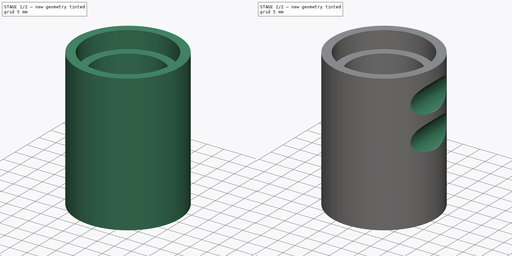
[diagram: build sequence overview — one tinted view per stage of 2, left to right]
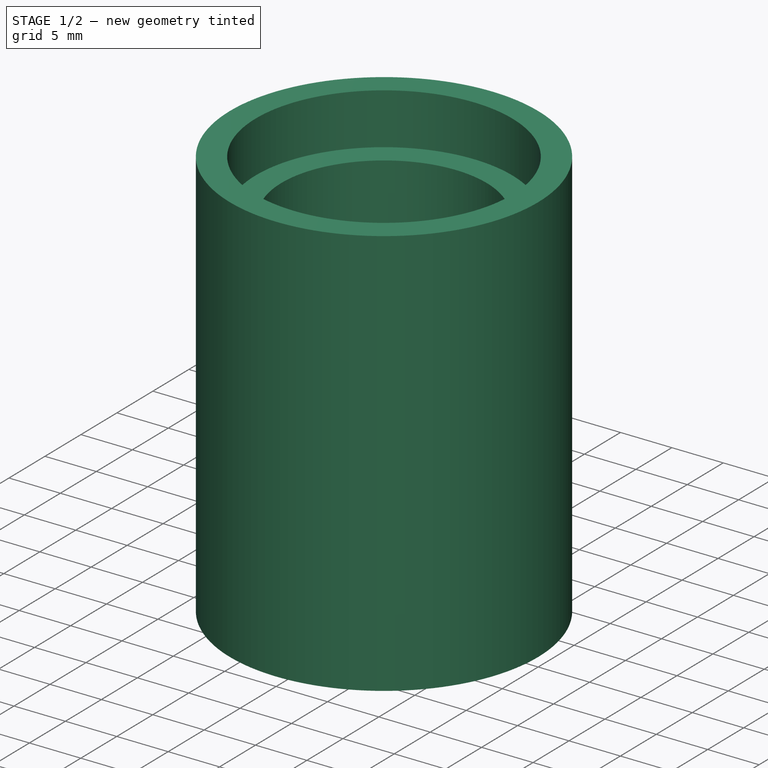
[diagram: stage 1 of 2 — iso view after this stage's code; geometry added in this stage tinted green]
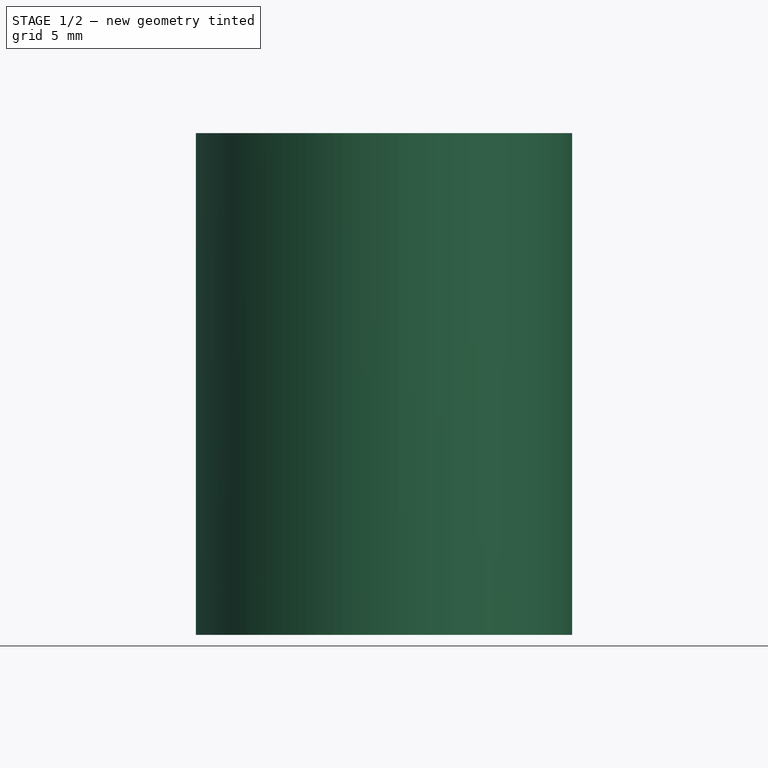
[diagram: stage 1 of 2 — front view after this stage's code; geometry added in this stage tinted green]
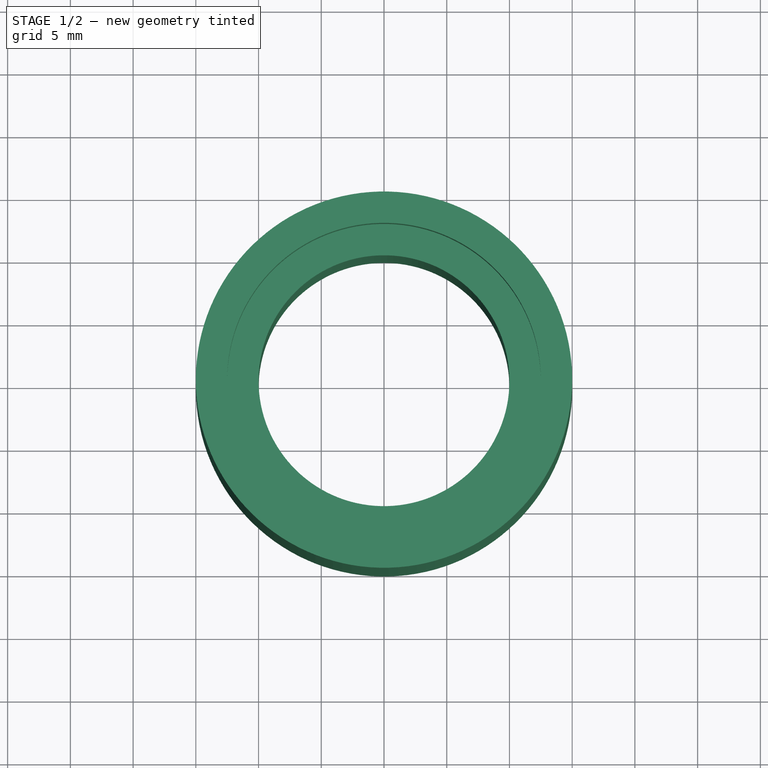
[diagram: stage 1 of 2 — top view after this stage's code; geometry added in this stage tinted green]
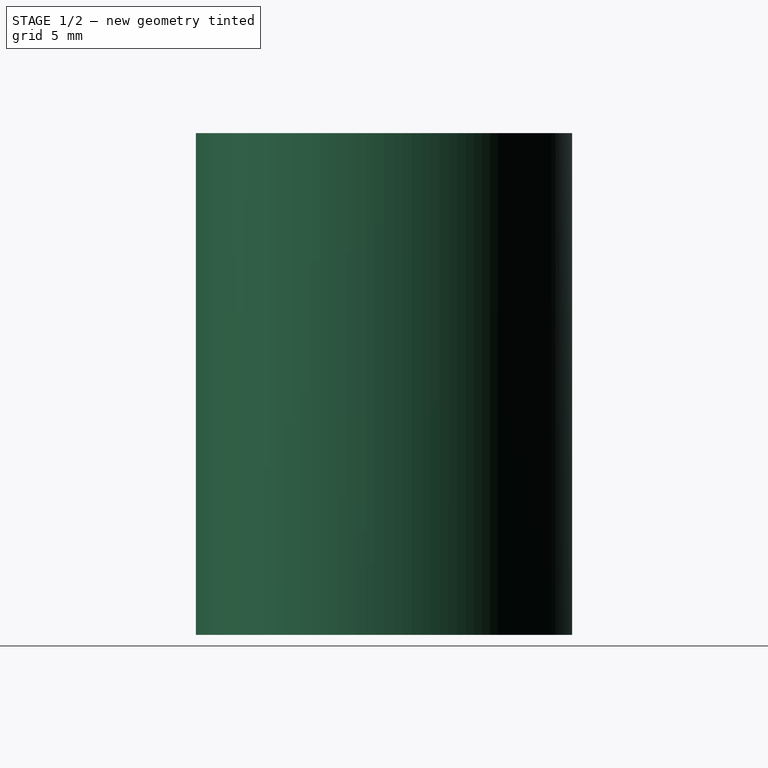
[diagram: stage 1 of 2 — right view after this stage's code; geometry added in this stage tinted green]
FCSTD DOCUMENT  (FreeCAD 0.18R16117 (Git))
Label: TelescopeTube
License: All rights reserved
LicenseURL: http://en.wikipedia.org/wiki/All_rights_reserved
objects: Sketcher::SketchObject×5, PartDesign::Pocket×3, PartDesign::Plane×2, PartDesign::Pad×1, PartDesign::Body×1
note: 16 computed .brp shape members not serialized (recipe doc carries the construction recipe); baked Part::Feature solids carry a one-line shape summary decoded from their .brp

FEATURE [Sketcher::SketchObject] Sketch  label="Master"
  MapMode = 5
  Support = -> [XY_Plane]
  sketch-geometry (5):
    g0: Circle CenterX=0 CenterY=0 CenterZ=0 NormalX=0 NormalY=0 NormalZ=1 AngleXU=0 Radius=15
    g1: Circle CenterX=0 CenterY=0 CenterZ=0 NormalX=0 NormalY=0 NormalZ=1 AngleXU=0 Radius=10
    g2: LineSegment StartX=31.7819 StartY=19.5998 StartZ=0 EndX=31.7819 EndY=-20.4002 EndZ=0
    g3: Circle CenterX=0 CenterY=0 CenterZ=0 NormalX=0 NormalY=0 NormalZ=1 AngleXU=0 Radius=12.5
    g4: Circle CenterX=0 CenterY=0 CenterZ=0 NormalX=0 NormalY=0 NormalZ=1 AngleXU=0 Radius=11.8
  constraints (10):
    c: Coincident(g0,g-1)
    c: Coincident(g1,g0)
    c: Radius(g0) = 15
    c: Radius(g1) = 10
    c: Vertical(g2)
    c: DistanceY(g2,g2) = 40  'TubeLength'
    c: Coincident(g3,g0)
    c: Radius(g3) = 12.5
    c: Coincident(g4,g0)
    c: Radius(g4) = 11.8
FEATURE [Sketcher::SketchObject] Sketch001
  MapMode = 5
  Support = -> [XY_Plane]
  expr: Constraints[3] = Sketch.Constraints[3]
  expr: Constraints[2] = Sketch.Constraints[2]
  sketch-geometry (2):
    g0: Circle CenterX=0 CenterY=0 CenterZ=0 NormalX=0 NormalY=0 NormalZ=1 AngleXU=0 Radius=15
    g1: Circle CenterX=0 CenterY=0 CenterZ=0 NormalX=0 NormalY=0 NormalZ=1 AngleXU=0 Radius=10
  constraints (4):
    c: Coincident(g0,g-1)
    c: Coincident(g1,g0)
    c: Radius(g0) = 15
    c: Radius(g1) = 10
FEATURE [PartDesign::Pad] Pad
  Length = 40
  Length2 = 100
  Midplane = true
  Profile = -> Sketch001
  Type = 0
  expr: Length = Master.Constraints.TubeLength
FEATURE [PartDesign::Plane] DatumPlane  label="DatumPlaneTop"
  AttachmentOffset = pos=(0,0,20) rot=(0,0,1;0rad)
  Length = 35.9835
  MapMode = 5
  Placement = pos=(0,0,20) rot=(0,0,1;0rad)
  ResizeMode = 0
  Support = -> [XY_Plane]
  Width = 35.8192
  expr: AttachmentOffset.Base.z = Master.Constraints.TubeLength / 2
FEATURE [Sketcher::SketchObject] Sketch002
  MapMode = 5
  Placement = pos=(0,0,20) rot=(0,0,1;0rad)
  Support = -> [DatumPlane]
  expr: Constraints[1] = Sketch.Constraints[7]
  expr: Constraints[0] = Sketch.Constraints[3]
  sketch-geometry (2):
    g0: Circle CenterX=0 CenterY=0 CenterZ=0 NormalX=0 NormalY=0 NormalZ=1 AngleXU=0 Radius=10
    g1: Circle CenterX=0 CenterY=0 CenterZ=0 NormalX=0 NormalY=0 NormalZ=1 AngleXU=0 Radius=12.5
  constraints (2):
    c: Radius(g0) = 10
    c: Radius(g1) = 12.5
FEATURE [PartDesign::Pocket] Pocket
  BaseFeature = -> Pad
  Length = 5
  Length2 = 100
  Profile = -> Sketch002
  Type = 0
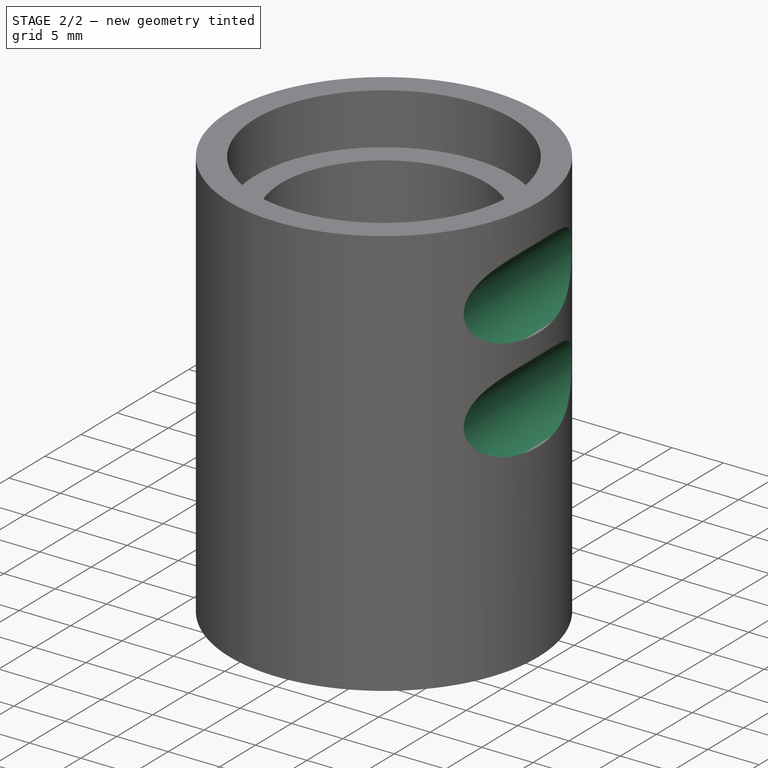
[diagram: stage 2 of 2 — iso view after this stage's code; geometry added in this stage tinted green]
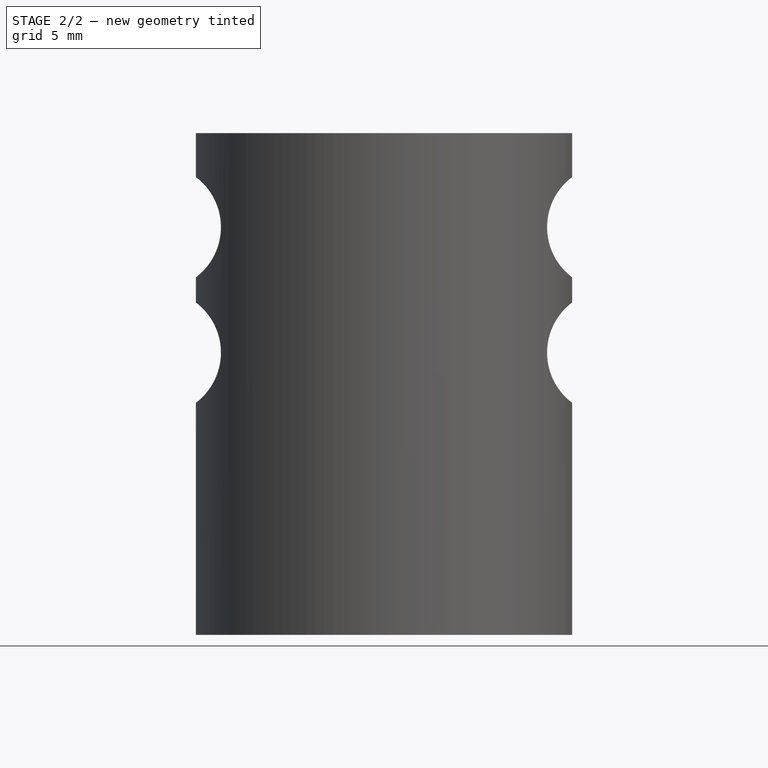
[diagram: stage 2 of 2 — front view after this stage's code; geometry added in this stage tinted green]
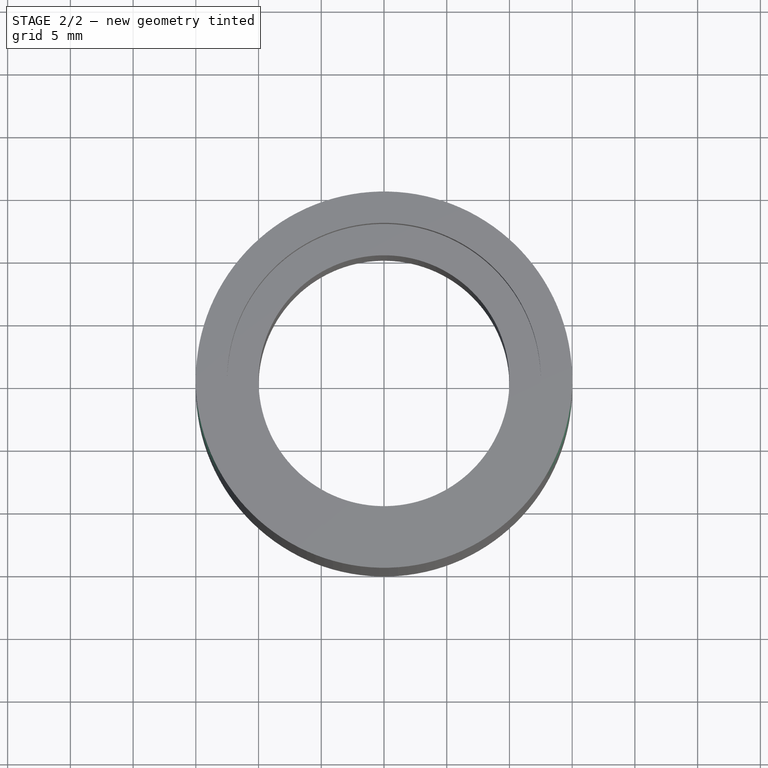
[diagram: stage 2 of 2 — top view after this stage's code; geometry added in this stage tinted green]
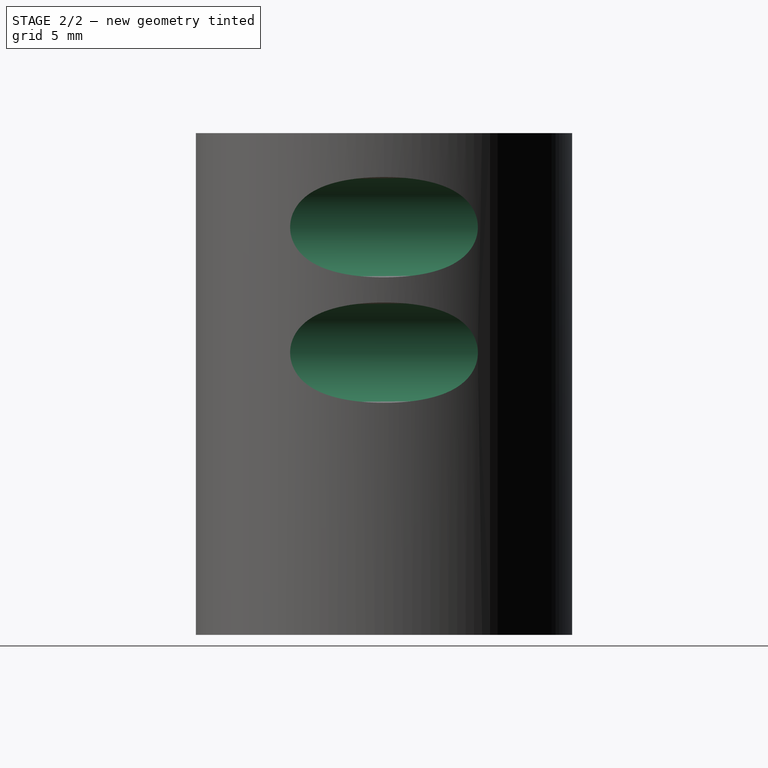
[diagram: stage 2 of 2 — right view after this stage's code; geometry added in this stage tinted green]
FEATURE [PartDesign::Plane] DatumPlane001
  AttachmentOffset = pos=(0,0,-20) rot=(0,0,1;0rad)
  Length = 35.9835
  MapMode = 5
  Placement = pos=(0,0,-20) rot=(0,0,1;0rad)
  ResizeMode = 0
  Support = -> [XY_Plane]
  Width = 35.8192
  expr: AttachmentOffset.Base.z = -Master.Constraints.TubeLength / 2
FEATURE [Sketcher::SketchObject] Sketch003
  MapMode = 5
  Placement = pos=(0,0,-20) rot=(0,0,1;0rad)
  Support = -> [DatumPlane001]
  expr: Constraints[1] = Sketch.Constraints[9]
  expr: Constraints[0] = Sketch.Constraints[3]
  sketch-geometry (2):
    g0: Circle CenterX=0 CenterY=0 CenterZ=0 NormalX=0 NormalY=0 NormalZ=1 AngleXU=0 Radius=10
    g1: Circle CenterX=0 CenterY=0 CenterZ=0 NormalX=0 NormalY=0 NormalZ=1 AngleXU=0 Radius=11.8
  constraints (2):
    c: Radius(g0) = 10
    c: Radius(g1) = 11.8
FEATURE [PartDesign::Pocket] Pocket001
  BaseFeature = -> Pocket
  Length = 10
  Length2 = 100
  Profile = -> Sketch003
  Reversed = true
  Type = 0
FEATURE [Sketcher::SketchObject] Sketch004  label="MasterXZ"
  MapMode = 5
  Placement = pos=(0,0,0) rot=(1,0,0;1.5708rad)
  Support = -> [XZ_Plane]
  expr: Constraints[34] = Master.Constraints.TubeLength
  sketch-geometry (16):
    g0: LineSegment [constr] StartX=-18 StartY=2.5 StartZ=0 EndX=18 EndY=2.5 EndZ=0
    g1: LineSegment [constr] StartX=18 StartY=2.5 StartZ=0 EndX=18 EndY=-20 EndZ=0
    g2: LineSegment [constr] StartX=18 StartY=-20 StartZ=0 EndX=-18 EndY=-20 EndZ=0
    g3: LineSegment [constr] StartX=-18 StartY=-20 StartZ=0 EndX=-18 EndY=2.5 EndZ=0
    g4: Circle CenterX=18 CenterY=2.5 CenterZ=0 NormalX=0 NormalY=0 NormalZ=1 AngleXU=0 Radius=5
    g5: Circle CenterX=-18 CenterY=2.5 CenterZ=0 NormalX=0 NormalY=0 NormalZ=1 AngleXU=0 Radius=5
    g6: LineSegment [constr] StartX=-18 StartY=2.5 StartZ=0 EndX=18 EndY=2.5 EndZ=0
    g7: LineSegment [constr] StartX=18 StartY=2.5 StartZ=0 EndX=18 EndY=12.5 EndZ=0
    g8: LineSegment [constr] StartX=18 StartY=12.5 StartZ=0 EndX=-18 EndY=12.5 EndZ=0
    g9: LineSegment [constr] StartX=-18 StartY=12.5 StartZ=0 EndX=-18 EndY=2.5 EndZ=0
    g10: Circle CenterX=18 CenterY=12.5 CenterZ=0 NormalX=0 NormalY=0 NormalZ=1 AngleXU=0 Radius=5
    g11: Circle CenterX=-18 CenterY=12.5 CenterZ=0 NormalX=0 NormalY=0 NormalZ=1 AngleXU=0 Radius=5
    g12: LineSegment [constr] StartX=-18 StartY=12.5 StartZ=0 EndX=18 EndY=12.5 EndZ=0
    g13: LineSegment [constr] StartX=18 StartY=12.5 StartZ=0 EndX=18 EndY=20 EndZ=0
    g14: LineSegment [constr] StartX=18 StartY=20 StartZ=0 EndX=-18 EndY=20 EndZ=0
    g15: LineSegment [constr] StartX=-18 StartY=20 StartZ=0 EndX=-18 EndY=12.5 EndZ=0
  constraints (38):
    c: Coincident(g0,g1)
    c: Coincident(g1,g2)
    c: Coincident(g2,g3)
    c: Coincident(g3,g0)
    c: Horizontal(g2)
    c: Vertical(g1)
    c: Vertical(g3)
    c: Coincident(g4,g0)
    c: Coincident(g5,g0)
    c: Equal(g5,g4)
    c: Radius(g4) = 5
    c: Symmetric(g4,g5,g-2)
    c: Coincident(g6,g7)
    c: Coincident(g7,g8)
    c: Coincident(g8,g9)
    c: Coincident(g9,g6)
    c: Horizontal(g8)
    c: Vertical(g7)
    c: Vertical(g9)
    c: Coincident(g6,g5)
    c: Coincident(g6,g4)
    c: Coincident(g10,g7)
    c: Coincident(g11,g8)
    c: Equal(g4,g10)
    c: Equal(g10,g11)
    c: DistanceY(g5,g11) = 10
    c: Coincident(g12,g13)
    c: Coincident(g13,g14)
    c: Coincident(g14,g15)
    c: Coincident(g15,g12)
    c: Horizontal(g14)
    c: Vertical(g13)
    c: Coincident(g12,g11)
    c: Coincident(g12,g10)
    c: DistanceY(g1,g13) = 40
    c: Symmetric(g14,g2,g-1)
    c: DistanceY(g11,g14) = 7.5
    c: DistanceX(g14,g13) = 36
FEATURE [PartDesign::Pocket] Pocket002
  BaseFeature = -> Pocket001
  Length = 5
  Length2 = 100
  Midplane = true
  Profile = -> Sketch004
  Type = 1
FEATURE [PartDesign::Body] Body
  Group = -> [Sketch,Sketch001,Pad,DatumPlane,Sketch002,Pocket,DatumPlane001,Sketch003,Pocket001,Sketch004,Pocket002]
  Origin = -> Origin
  Tip = -> Pocket002
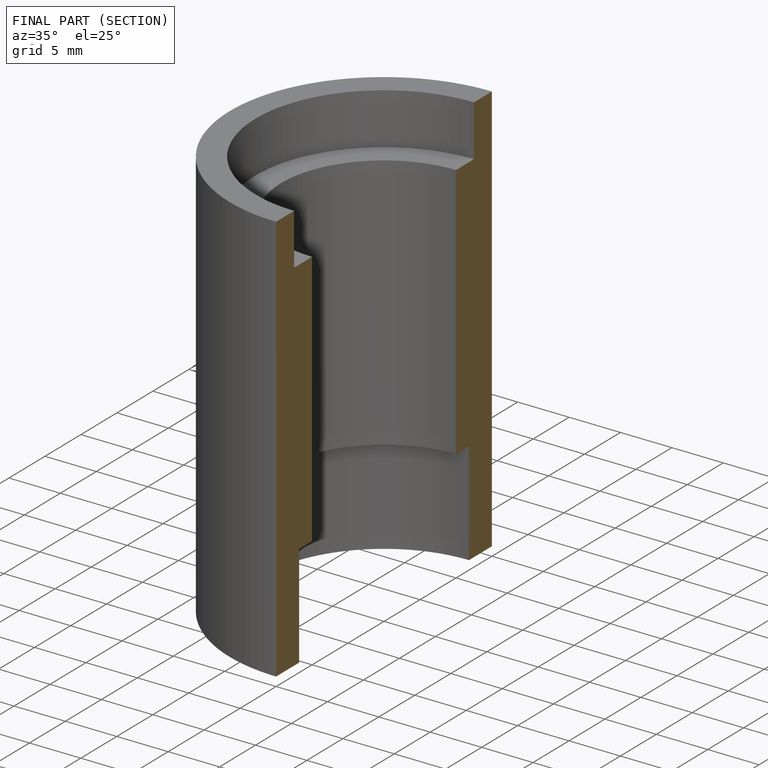
[diagram: finished part — half-section view (interior)]
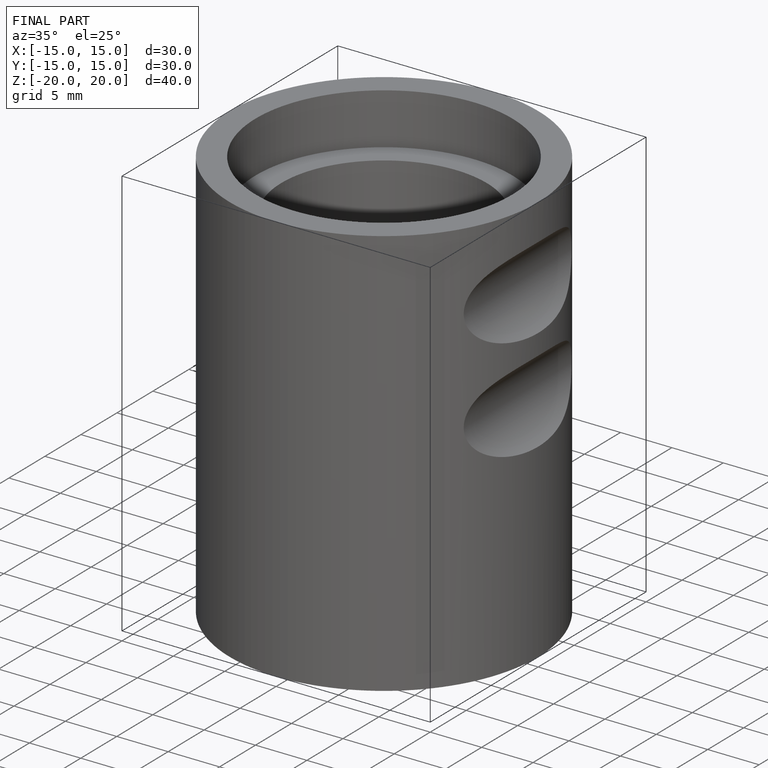
[diagram: finished part — iso view with bounding-box wireframe]
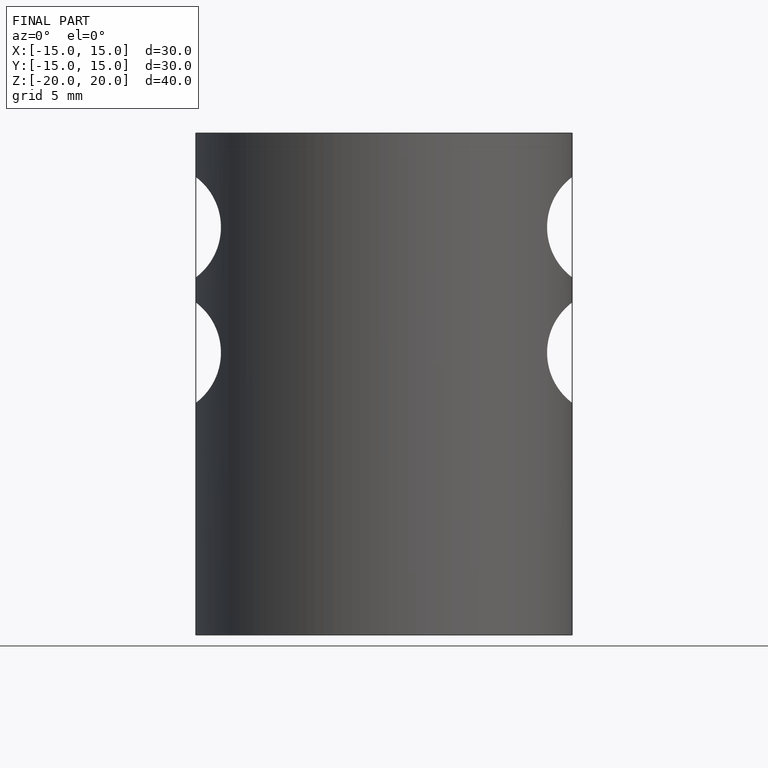
[diagram: finished part — front view with bounding-box wireframe]
